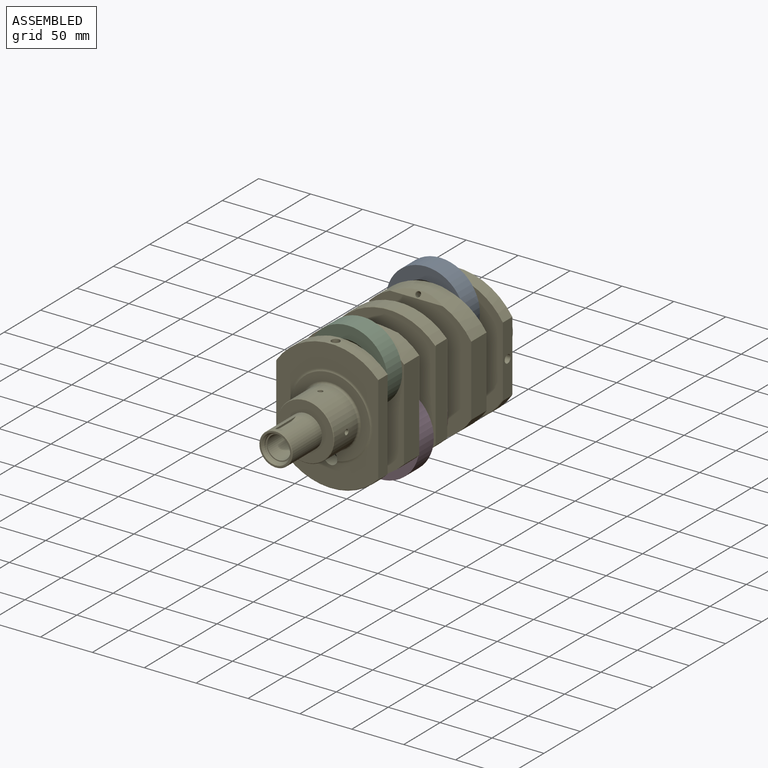
[diagram: assembled view]
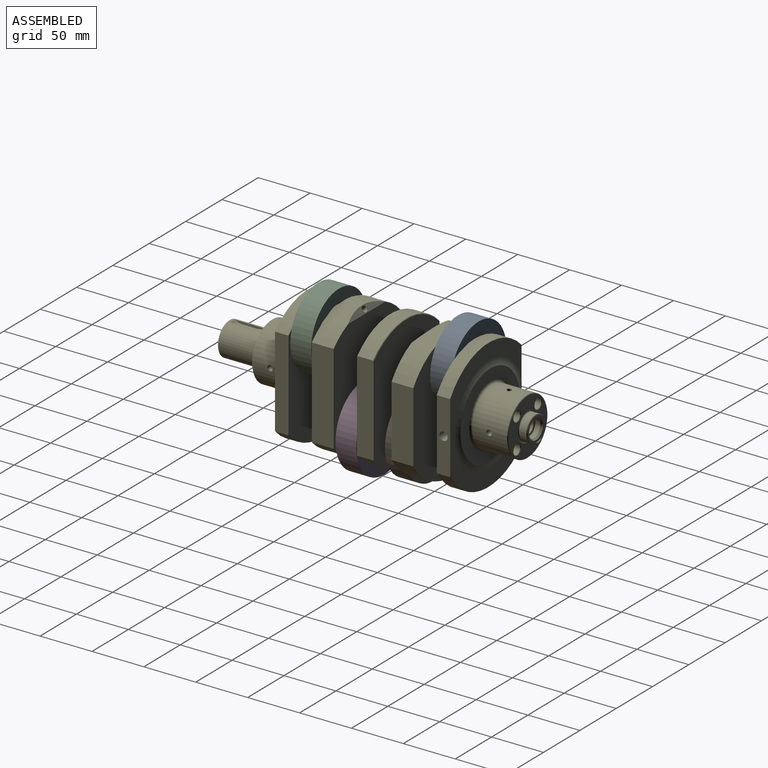
[diagram: assembled view, second angle]
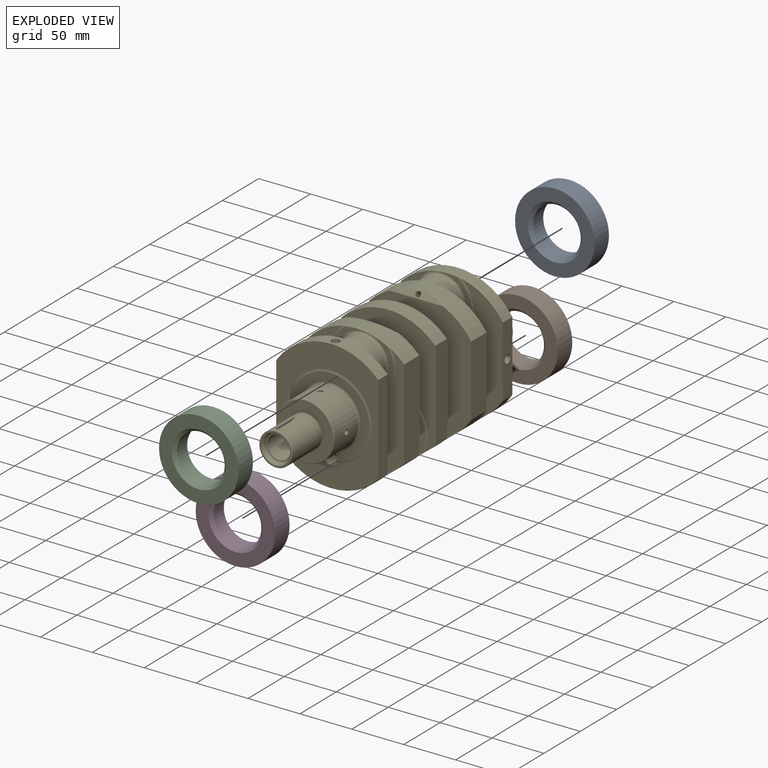
[diagram: exploded view]
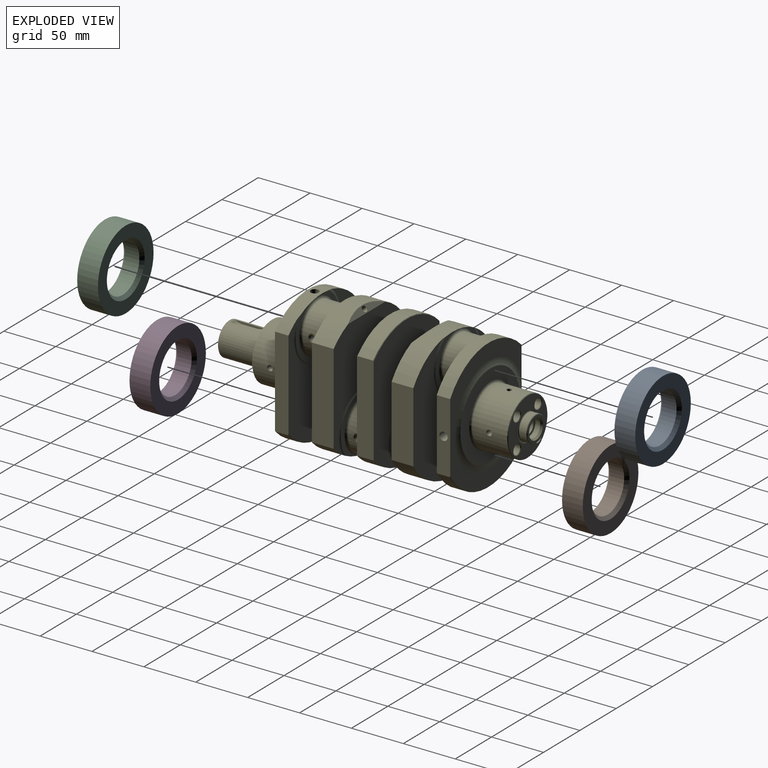
[diagram: exploded view, second angle]
ASSEMBLY  parts=5 mates=4
PART A: 6 faces, bbox 76.5x20x76.5 mm
  f0: cylinder r=23mm len=46mm, axis (0,1,0), area 2023.2mm2, adj f4,f5
  f1: cylinder r=38.25mm len=76.5mm, axis (0,1,0), area 4806.6mm2, adj f2,f3
  f2: plane 76.5x76.5mm, normal (0,-1,0), area 2472.6mm2, adj f1,f5
  f3: plane 76.5x76.5mm, normal (0,1,0), area 2472.6mm2, adj f1,f4
  f4: cone r=26mm half-angle=45deg, axis (0,1,0), area 653.1mm2, adj f0,f3
  f5: cone r=23mm half-angle=45deg, axis (0,-1,0), area 653.1mm2, adj f0,f2
PART B: same geometry as A
PART C: same geometry as A
PART D: same geometry as A
PART E: 202 faces, bbox 126x295.6x139.2 mm
  f0: cylinder r=63mm len=98.6mm, axis (0,1,0), area 1453.8mm2, adj f48,f49,f51,f52,f53,f54,f69,f70
  f1: cylinder r=63mm len=98.6mm, axis (0,-1,0), area 1317.4mm2, adj f96,f97,f188,f189,f194
  f2: cone r=0mm half-angle=60deg, axis (0,1,0), area 67.7mm2, adj f12,f118,f119,f157,f158,f168
  f3: cylinder r=2mm len=42mm, axis (1,0,0), area 489.9mm2, adj f127,f133,f168
  f4: cylinder r=3mm len=94.5mm, axis (0,0,-1), area 1702mm2, adj f5,f16,f154,f167,f168
  f5: cone r=0mm half-angle=59deg, axis (0,0,-1), area 21.4mm2, adj f4,f167
  f6: cone r=0mm half-angle=60deg, axis (0,-1,0), area 394.4mm2, adj f15,f155,f156,f166
  f7: cylinder r=2mm len=42mm, axis (1,0,0), area 489.9mm2, adj f125,f131,f166
  f8: cylinder r=3mm len=94.5mm, axis (0,0,-1), area 1702mm2, adj f9,f16,f19,f165,f166
  f9: cone r=0mm half-angle=59deg, axis (0,0,-1), area 21.4mm2, adj f8,f165
  f10: cylinder r=63mm len=98.6mm, axis (0,-1,0), area 2255.7mm2, adj f11,f85,f86,f87,f92,f104,f163,f182
  f11: plane 118.87x98.1mm, normal (0,-1,0), area 7720mm2, adj f10,f17,f85,f88,f163,f182
  f12: cylinder r=6.2mm len=19.42mm, axis (0,1,0), area 713.3mm2, adj f2,f106,f118,f119,f157,f158
  f13: cylinder r=27.49mm len=54.99mm, axis (0,1,0), area 5707.8mm2, adj f115,f117,f123,f129,f159,f160
  f14: cylinder r=27.49mm len=54.99mm, axis (0,1,0), area 5435.8mm2, adj f58,f61,f122,f128,f161,f162
  f15: cylinder r=10.75mm len=25mm, axis (0,-1,0), area 1630.1mm2, adj f6,f65,f120,f121,f155,f156
  f16: cylinder r=3mm len=78.5mm, axis (0,-1,0), area 1358.7mm2, adj f4,f8,f20,f21,f22,f23,f151,f152
  f17: cylinder r=63mm len=98.6mm, axis (0,-1,0), area 2387.7mm2, adj f11,f84,f85,f86,f87,f88,f152,f182
  f18: cylinder r=63mm len=98.6mm, axis (0,1,0), area 2387.5mm2, adj f36,f37,f38,f40,f41,f42,f151,f180
  f19: cylinder r=3mm len=12.25mm, axis (0,-1,0), area 198.8mm2, adj f8,f40,f151
  f20: cylinder r=2mm len=25.28mm, axis (1,0,0), area 310.2mm2, adj f16,f132
  f21: cylinder r=2mm len=12.25mm, axis (1,0,0), area 146.5mm2, adj f16,f126
  f22: cylinder r=2mm len=12.25mm, axis (1,0,0), area 146.6mm2, adj f16,f130
  f23: cylinder r=2mm len=25.28mm, axis (1,0,0), area 310.1mm2, adj f16,f124
  f24: plane 86.94x16mm, normal (1,0,0), area 1390.7mm2, adj f25,f27,f28,f29,f192,f193
  f25: cylinder r=63mm len=91.2mm, axis (0,1,0), area 1529.6mm2, adj f24,f26,f192,f193
  f26: plane 86.94x15mm, normal (-1,0,0), area 1304.1mm2, adj f25,f27,f30,f31
  f27: cylinder r=63mm len=91.2mm, axis (0,1,0), area 1677.4mm2, adj f24,f26,f28,f29,f30,f31,f32,f34
  f28: plane 123.81x90.7mm, normal (0,-1,0), area 7278.8mm2, adj f24,f27,f30,f34,f193
  f29: plane 123.81x90.7mm, normal (0,1,0), area 7278.8mm2, adj f24,f27,f31,f89,f192
  f30: plane 87.46x0.5mm, normal (-0.71,-0.71,0), area 61.6mm2, adj f26,f27,f28,f193
  f31: plane 87.46x0.5mm, normal (-0.71,0.71,0), area 61.6mm2, adj f26,f27,f29,f192
  f32: plane 60x56.07mm, normal (0,-1,0), area 689.5mm2, adj f27,f34,f35
  f33: cylinder r=23mm len=46mm, axis (0,1,0), area 2332.1mm2, adj f35,f43,f124,f130
  f34: torus R=32.18mm, axis (0,-1,0), area 326.3mm2, adj f27,f28,f32
  f35: torus R=25.3mm, axis (0,-1,0), area 541.1mm2, adj f32,f33
  f36: plane 60x56.07mm, normal (0,1,0), area 689.5mm2, adj f18,f42,f43
  f37: plane 68.12x20mm, normal (-1,0,0), area 1362.4mm2, adj f18,f39,f180,f181
  f38: plane 86.94x21mm, normal (1,0,0), area 1825.7mm2, adj f18,f39,f40,f41
  f39: cylinder r=63mm len=98.6mm, axis (0,1,0), area 2255.6mm2, adj f37,f38,f40,f41,f44,f46,f164,f180
  f40: plane 124.31x98.1mm, normal (0,-1,0), area 7888.7mm2, adj f18,f19,f38,f39,f46,f180
  f41: plane 118.87x98.1mm, normal (0,1,0), area 7729.3mm2, adj f18,f38,f39,f42,f164,f181
  f42: torus R=32.18mm, axis (0,-1,0), area 326.3mm2, adj f18,f36,f41
  f43: torus R=25.3mm, axis (0,-1,0), area 541.1mm2, adj f33,f36
  f44: plane 60x56.07mm, normal (0,-1,0), area 689.5mm2, adj f39,f46,f47
  f45: cylinder r=23mm len=46mm, axis (0,1,0), area 2332.1mm2, adj f47,f125,f131,f179
  f46: torus R=32.18mm, axis (0,-1,0), area 326.3mm2, adj f39,f40,f44
  f47: torus R=25.3mm, axis (0,-1,0), area 541.1mm2, adj f44,f45
  f48: plane 60x56.07mm, normal (0,1,0), area 689.5mm2, adj f0,f54,f179
  f49: plane 68.12x12mm, normal (-1,0,0), area 767.1mm2, adj f0,f50,f69,f70,f200
  f50: cylinder r=63mm len=98.6mm, axis (0,1,0), area 1367.6mm2, adj f49,f51,f190,f191
  f51: plane 86.94x13mm, normal (1,0,0), area 1129.9mm2, adj f0,f50,f52,f53,f190,f191
  f52: plane 125.5x98.1mm, normal (0,-1,0), area 5787mm2, adj f0,f51,f56,f69,f150,f191
  f53: plane 123.81x98.1mm, normal (0,1,0), area 7727.6mm2, adj f0,f51,f54,f70,f150,f190
  f54: torus R=32.18mm, axis (0,-1,0), area 326.3mm2, adj f0,f48,f53
  f55: plane 76x75.47mm, normal (0,-1,0), area 1713.6mm2, adj f56,f61,f150
  f56: torus R=40.18mm, axis (0,-1,0), area 527.4mm2, adj f52,f55,f150
  f57: plane 53.99x53.99mm, normal (0,-1,0), area 1485.1mm2, adj f58,f59
  f58: cone r=27mm half-angle=45deg, axis (0,1,0), area 121mm2, adj f14,f57
  f59: cylinder r=16mm len=40.5mm, axis (0,1,0), area 3897mm2, adj f57,f62,f71,f72,f73,f74,f76,f78
  f60: plane 31.01x31.01mm, normal (0,-1,0), area 144mm2, adj f62,f64
  f61: torus R=29.5mm, axis (0,-1,0), area 557.1mm2, adj f14,f55
  f62: cone r=15.5mm half-angle=45deg, axis (0,1,0), area 70mm2, adj f59,f60
  f63: cylinder r=12.5mm len=25mm, axis (0,-1,0), area 117.8mm2, adj f64,f68
  f64: cone r=12.5mm half-angle=30deg, axis (0,-1,0), area 239.8mm2, adj f60,f63
  f65: cone r=10.75mm half-angle=30deg, axis (0,-1,0), area 60.4mm2, adj f15,f66
  f66: cylinder r=11.19mm len=32.74mm, axis (0,-1,0), area 2301.6mm2, adj f65,f67
  f67: plane 24x24mm, normal (0,-1,0), area 59.2mm2, adj f66,f68
  f68: torus R=12mm, axis (0,-1,0), area 60.8mm2, adj f63,f67
  f69: plane 68.89x0.5mm, normal (-0.71,-0.71,0), area 48.4mm2, adj f0,f49,f52,f191
  f70: plane 68.89x0.5mm, normal (-0.71,0.71,0), area 48.4mm2, adj f0,f49,f53,f190
  f71: cylinder r=14mm len=7.84mm, axis (-1,0,0), area 44.2mm2, adj f59,f75,f78,f81
  f72: cylinder r=14mm len=7.84mm, axis (-1,0,0), area 44.2mm2, adj f59,f75,f76,f79
  f73: plane 27.63x1.82mm, normal (-1,0,0), area 42.2mm2, adj f59,f79,f80,f81
  f74: plane 27.63x1.82mm, normal (1,0,0), area 42.2mm2, adj f59,f76,f77,f78
  f75: plane 14x5.4mm, normal (0,0,1), area 75.6mm2, adj f71,f72,f77,f80
  f76: torus R=13.7mm, axis (1,0,0), area 3.6mm2, adj f59,f72,f74,f77
  f77: cylinder r=0.3mm len=14mm, axis (0,-1,0), area 6.6mm2, adj f74,f75,f76,f78
  f78: torus R=13.7mm, axis (1,0,0), area 3.6mm2, adj f59,f71,f74,f77
  f79: torus R=13.7mm, axis (1,0,0), area 3.6mm2, adj f59,f72,f73,f80
  f80: cylinder r=0.3mm len=14mm, axis (0,1,0), area 6.6mm2, adj f73,f75,f79,f81
  f81: torus R=13.7mm, axis (1,0,0), area 3.6mm2, adj f59,f71,f73,f80
  f82: plane 60x56.07mm, normal (0,1,0), area 689.5mm2, adj f27,f89,f90
  f83: cylinder r=23mm len=46mm, axis (0,-1,0), area 2331.1mm2, adj f90,f91,f126,f132
  f84: plane 60x56.07mm, normal (0,-1,0), area 689.5mm2, adj f17,f88,f91
  f85: plane 68.12x21mm, normal (1,0,0), area 1430.5mm2, adj f10,f11,f17,f87
  f86: plane 86.94x20mm, normal (-1,0,0), area 1738.8mm2, adj f10,f17,f182,f183
  f87: plane 124.31x98.1mm, normal (0,1,0), area 7907.7mm2, adj f10,f17,f85,f104,f183
  f88: torus R=32.18mm, axis (0,1,0), area 326.3mm2, adj f11,f17,f84
  f89: torus R=32.18mm, axis (0,-1,0), area 326.3mm2, adj f27,f29,f82
  f90: torus R=25.3mm, axis (0,1,0), area 541.1mm2, adj f82,f83
  f91: torus R=25.3mm, axis (0,1,0), area 541.1mm2, adj f83,f84
  f92: plane 60x56.07mm, normal (0,1,0), area 689.5mm2, adj f10,f101,f104
  f93: cylinder r=23mm len=46mm, axis (0,-1,0), area 2331mm2, adj f101,f102,f127,f133
  f94: cylinder r=63mm len=98.6mm, axis (0,-1,0), area 1504.3mm2, adj f95,f96,f97,f98,f99,f103,f184,f185
  f95: plane 60x56.07mm, normal (0,-1,0), area 689.5mm2, adj f94,f102,f103
  f96: plane 86.94x12.2mm, normal (-1,0,0), area 1046.3mm2, adj f1,f94,f184,f185,f186,f187
  f97: plane 68.12x13mm, normal (1,0,0), area 834.8mm2, adj f1,f94,f98,f99,f188,f189,f198
  f98: plane 125.5x98.1mm, normal (0,1,0), area 3816mm2, adj f94,f97,f105,f185,f186,f188
  f99: plane 123.81x98.1mm, normal (0,-1,0), area 7851mm2, adj f94,f97,f103,f184,f189
  f100: plane 82x82mm, normal (0,1,0), area 2548mm2, adj f105,f117
  f101: torus R=25.3mm, axis (0,1,0), area 541.1mm2, adj f92,f93
  f102: torus R=25.3mm, axis (0,1,0), area 541.1mm2, adj f93,f95
  f103: torus R=32.18mm, axis (0,1,0), area 326.3mm2, adj f94,f95,f99
  f104: torus R=32.18mm, axis (0,1,0), area 326.3mm2, adj f10,f87,f92
  f105: torus R=47.54mm, axis (0,1,0), area 1831.7mm2, adj f98,f100,f187
  f106: plane 16x16mm, normal (0,1,0), area 80.3mm2, adj f12,f113
  f107: cylinder r=8.5mm len=17mm, axis (0,1,0), area 240.3mm2, adj f108,f113
  f108: cone r=8.5mm half-angle=30deg, axis (0,1,0), area 131.7mm2, adj f107,f109
  f109: plane 24x24mm, normal (0,1,0), area 159.6mm2, adj f108,f116
  f110: cylinder r=12.5mm len=25mm, axis (0,1,0), area 506.6mm2, adj f111,f116
  f111: torus R=12.95mm, axis (0,1,0), area 190.1mm2, adj f110,f114
  f112: plane 53.99x53.99mm, normal (0,1,0), area 1341.4mm2, adj f114,f115,f142,f143,f144,f145
  f113: torus R=8mm, axis (0,-1,0), area 41mm2, adj f106,f107
  f114: cone r=13.44mm half-angle=69.7deg, axis (0,1,0), area 29.6mm2, adj f111,f112
  f115: cone r=27mm half-angle=45deg, axis (0,-1,0), area 121mm2, adj f13,f112
  f116: cone r=12mm half-angle=45deg, axis (0,-1,0), area 54.4mm2, adj f109,f110
  f117: torus R=29.5mm, axis (0,1,0), area 557.1mm2, adj f13,f100
  f118: cylinder r=2.25mm len=23.91mm, axis (1,0,0), area 308.6mm2, adj f2,f12,f123
  f119: cylinder r=2.25mm len=23.91mm, axis (1,0,0), area 308.6mm2, adj f2,f12,f129
  f120: cylinder r=2.25mm len=16.35mm, axis (1,0,0), area 231.1mm2, adj f15,f122
  f121: cylinder r=2.25mm len=16.35mm, axis (1,0,0), area 231.1mm2, adj f15,f128
  f122: bspline ~5.61x5.5mm, area 12.5mm2, adj f14,f120
  f123: bspline ~5.6x5.51mm, area 12.5mm2, adj f13,f118
  f124: bspline ~8.78x8.01mm, area 58.9mm2, adj f23,f33
  f125: bspline ~8.77x8.01mm, area 58.9mm2, adj f7,f45
  f126: bspline ~8.78x8.01mm, area 58.9mm2, adj f21,f83
  f127: bspline ~8.77x8.01mm, area 58.9mm2, adj f3,f93
  f128: bspline ~5.61x5.5mm, area 12.5mm2, adj f14,f121
  f129: bspline ~5.6x5.51mm, area 12.5mm2, adj f13,f119
  f130: bspline ~8.78x8.01mm, area 58.9mm2, adj f22,f33
  f131: bspline ~8.77x8.01mm, area 58.9mm2, adj f7,f45
  f132: bspline ~8.78x8.01mm, area 58.9mm2, adj f20,f83
  f133: bspline ~8.77x8.01mm, area 58.9mm2, adj f3,f93
  f134: cylinder r=4.8mm len=10.04mm, axis (0,1,0), area 302.7mm2, adj f143,f146
  f135: plane 8x8mm, normal (0,1,0), area 1mm2, adj f146,f175
  f136: cylinder r=4.8mm len=10.04mm, axis (0,1,0), area 302.7mm2, adj f142,f147
  f137: plane 8x8mm, normal (0,1,0), area 1mm2, adj f147,f177
  f138: cylinder r=4.8mm len=10.04mm, axis (0,1,0), area 302.7mm2, adj f144,f148
  f139: plane 8x8mm, normal (0,1,0), area 1mm2, adj f148,f173
  f140: cylinder r=4.8mm len=10.04mm, axis (0,1,0), area 302.7mm2, adj f145,f149
  f141: plane 8x8mm, normal (0,1,0), area 1mm2, adj f149,f171
  f142: cone r=4.8mm half-angle=45deg, axis (0,1,0), area 22.4mm2, adj f112,f136
  f143: cone r=4.8mm half-angle=45deg, axis (0,1,0), area 22.4mm2, adj f112,f134
  f144: cone r=4.8mm half-angle=45deg, axis (0,1,0), area 22.4mm2, adj f112,f138
  f145: cone r=4.8mm half-angle=45deg, axis (0,1,0), area 22.4mm2, adj f112,f140
  f146: cone r=4mm half-angle=60deg, axis (0,1,0), area 25.5mm2, adj f134,f135
  f147: cone r=4mm half-angle=60deg, axis (0,1,0), area 25.5mm2, adj f136,f137
  f148: cone r=4mm half-angle=60deg, axis (0,1,0), area 25.5mm2, adj f138,f139
  f149: cone r=4mm half-angle=60deg, axis (0,1,0), area 25.5mm2, adj f140,f141
  f150: cylinder r=6.5mm len=13.5mm, axis (0,-1,0), area 543.9mm2, adj f52,f53,f55,f56
  f151: cylinder r=3mm len=25.43mm, axis (0,0,-1), area 447.2mm2, adj f16,f18,f19
  f152: cylinder r=3mm len=25.43mm, axis (0,0,-1), area 447.2mm2, adj f16,f17,f154
  f153: cone r=0mm half-angle=59deg, axis (0,-1,0), area 33mm2, adj f154
  f154: cylinder r=3mm len=6mm, axis (0,-1,0), area 76.3mm2, adj f4,f152,f153
  f155: cylinder r=2.25mm len=17.47mm, axis (0,0,-1), area 231.7mm2, adj f6,f15,f162
  f156: cylinder r=2.25mm len=16.38mm, axis (0,0,-1), area 231mm2, adj f6,f15,f161
  f157: cylinder r=2.25mm len=23.11mm, axis (0,0,-1), area 305mm2, adj f2,f12,f160
  f158: cylinder r=2.25mm len=23.24mm, axis (0,0,-1), area 304.2mm2, adj f2,f12,f159
  f159: bspline ~5.61x5.51mm, area 12.4mm2, adj f13,f158
  f160: bspline ~5.61x5.5mm, area 12.5mm2, adj f13,f157
  f161: bspline ~5.61x5.5mm, area 12.4mm2, adj f14,f156
  f162: bspline ~5.6x5.51mm, area 12.5mm2, adj f14,f155
  f163: plane 51.24x5.45mm, normal (0,-0.77,0.64), area 220.6mm2, adj f10,f11,f169
  f164: plane 51.24x5.45mm, normal (0,0.77,0.64), area 220.6mm2, adj f39,f41,f170
  f165: cylinder r=2.5mm len=7.22mm, axis (0,0.77,0.64), area 82.1mm2, adj f8,f9,f170
  f166: cylinder r=2.5mm len=60.39mm, axis (0,0.77,0.64), area 1115.6mm2, adj f6,f7,f8
  f167: cylinder r=2.5mm len=7.9mm, axis (0,-0.77,0.64), area 86.1mm2, adj f4,f5,f169
  f168: cylinder r=2.5mm len=68.66mm, axis (0,-0.77,0.64), area 1255mm2, adj f2,f3,f4
  f169: cone r=2.5mm half-angle=30deg, axis (0,-0.77,0.64), area 9.6mm2, adj f163,f167
  f170: cone r=2.5mm half-angle=30deg, axis (0,0.77,0.64), area 9.6mm2, adj f164,f165
  f171: cylinder r=3.96mm len=31mm, axis (0,1,0), area 771mm2, adj f141,f172
  f172: cone r=0mm half-angle=59deg, axis (0,1,0), area 57.4mm2, adj f171
  f173: cylinder r=3.96mm len=31mm, axis (0,1,0), area 771mm2, adj f139,f174
  f174: cone r=0mm half-angle=59deg, axis (0,1,0), area 57.4mm2, adj f173
  f175: cylinder r=3.96mm len=31mm, axis (0,1,0), area 771mm2, adj f135,f176
  f176: cone r=0mm half-angle=59deg, axis (0,1,0), area 57.4mm2, adj f175
  f177: cylinder r=3.96mm len=31mm, axis (0,1,0), area 771mm2, adj f137,f178
  f178: cone r=0mm half-angle=59deg, axis (0,1,0), area 57.4mm2, adj f177
  f179: torus R=25.3mm, axis (0,-1,0), area 541.1mm2, adj f45,f48
  f180: plane 69.65x0.5mm, normal (-0.71,-0.71,0), area 48.7mm2, adj f18,f37,f39,f40
  f181: plane 69.65x0.5mm, normal (-0.71,0.71,0), area 48.7mm2, adj f18,f37,f39,f41
  f182: plane 87.98x0.5mm, normal (-0.71,-0.71,0), area 61.8mm2, adj f10,f11,f17,f86
  f183: plane 87.98x0.5mm, normal (-0.71,0.71,0), area 61.8mm2, adj f10,f17,f86,f87
  f184: plane 87.46x0.5mm, normal (-0.71,-0.71,0), area 61.6mm2, adj f94,f96,f99,f189
  f185: plane 28.96x0.5mm, normal (-0.71,0.71,0), area 20.3mm2, adj f94,f96,f98,f187
  f186: plane 28.44x0.5mm, normal (-0.71,0.71,0), area 20mm2, adj f96,f98,f187,f188
  f187: bspline ~30.06x0.69mm, area 20.1mm2, adj f96,f105,f185,f186
  f188: cone r=62.5mm half-angle=45deg, axis (0,-1,0), area 80.5mm2, adj f1,f97,f98,f186
  f189: cone r=63mm half-angle=45deg, axis (0,1,0), area 80.5mm2, adj f1,f97,f99,f184
  f190: cone r=63mm half-angle=45deg, axis (0,-1,0), area 80.4mm2, adj f50,f51,f53,f70
  f191: cone r=62.5mm half-angle=45deg, axis (0,1,0), area 80.4mm2, adj f50,f51,f52,f69
  f192: cone r=63mm half-angle=45deg, axis (0,-1,0), area 71.9mm2, adj f24,f25,f29,f31
  f193: cone r=62.5mm half-angle=45deg, axis (0,1,0), area 71.9mm2, adj f24,f25,f28,f30
  f194: cylinder r=4mm len=8.87mm, axis (0,0,-1), area 223mm2, adj f1,f195
  f195: cone r=0mm half-angle=59deg, axis (0,0,-1), area 58.6mm2, adj f194
  f196: cylinder r=4mm len=8.87mm, axis (0,0,1), area 223mm2, adj f0,f197
  f197: cone r=0mm half-angle=59deg, axis (0,0,1), area 58.6mm2, adj f196
  f198: cylinder r=4mm len=17.5mm, axis (1,0,0), area 439.8mm2, adj f97,f199
  f199: cone r=0mm half-angle=59deg, axis (1,0,0), area 58.6mm2, adj f198
  f200: cylinder r=4mm len=17.5mm, axis (-1,0,0), area 439.8mm2, adj f49,f201
  f201: cone r=0mm half-angle=59deg, axis (-1,0,0), area 58.6mm2, adj f200
PLACE A t=(-6.51,77.94,36.93)mm
PLACE B t=(-6.51,34.44,-36.93)mm
PLACE C t=(6.51,-47.56,36.93)mm
PLACE D t=(6.51,-4.06,-36.93)mm
PLACE E t=(0,15.19,0)mm
MATE revolute C.f0 <-> E.f45  axis (0,1,0) through (6.51,-47.56,36.93)mm
MATE revolute B.f0 <-> E.f83  axis (0,1,0) through (-6.51,34.44,-36.93)mm
MATE revolute D.f0 <-> E.f33  axis (0,1,0) through (6.51,-4.06,-36.93)mm
MATE revolute A.f0 <-> E.f93  axis (0,1,0) through (-6.51,77.94,36.93)mm
